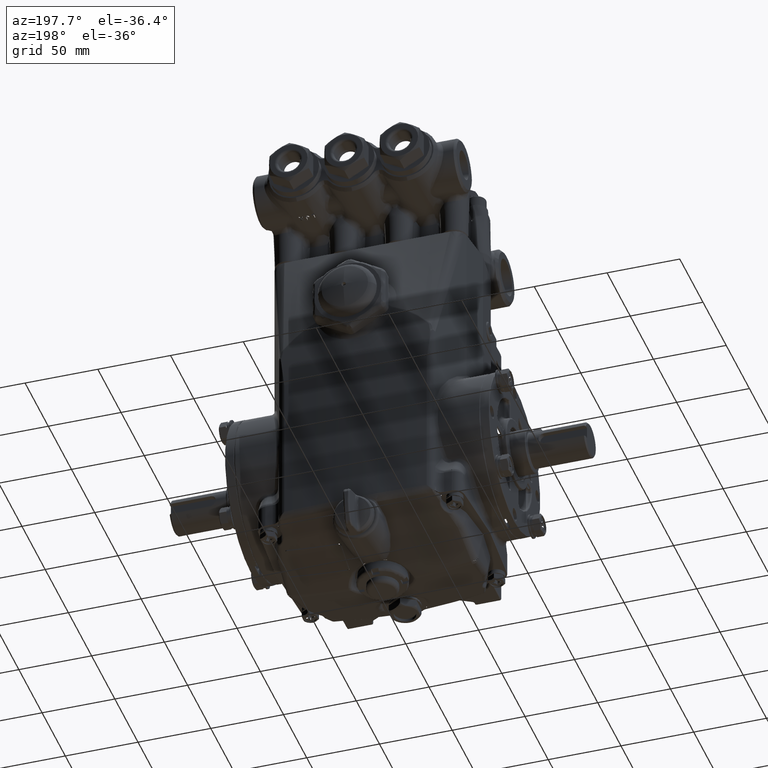
[diagram: clean part render]
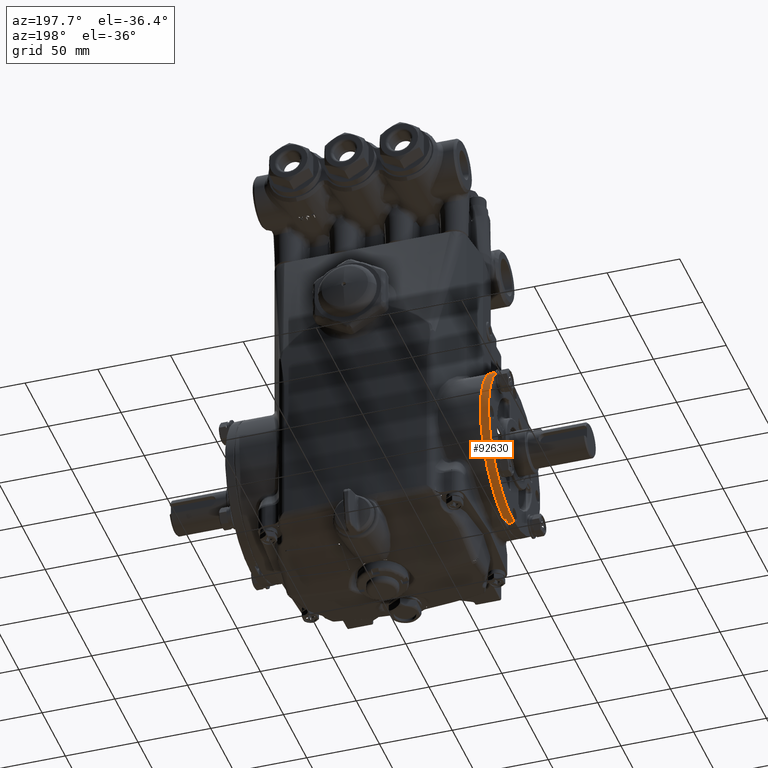
[diagram: same view with one face highlighted and labeled with its STEP entity id]
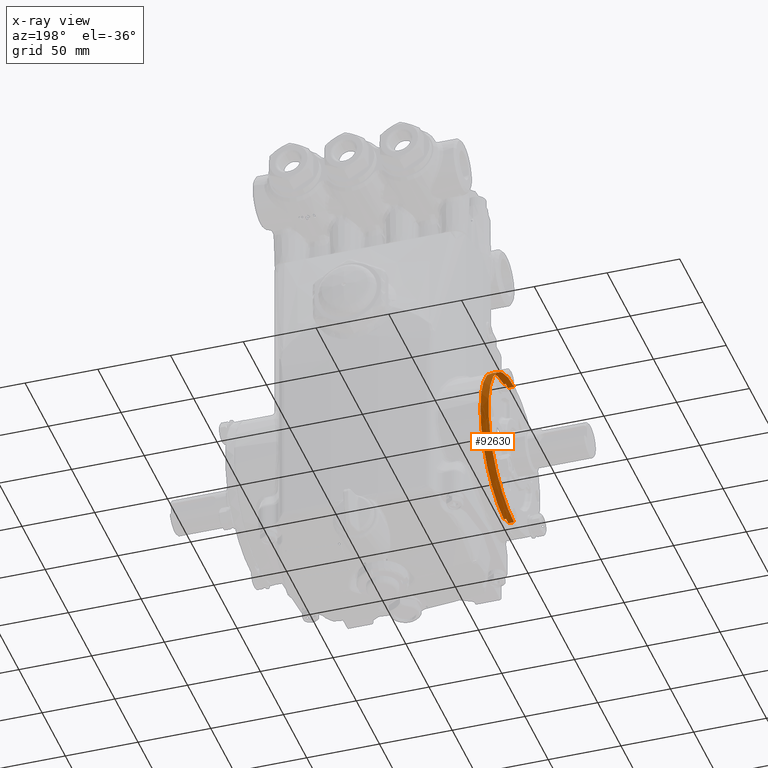
[diagram: x-ray of the same camera — body ghosted, the highlighted face saturated]
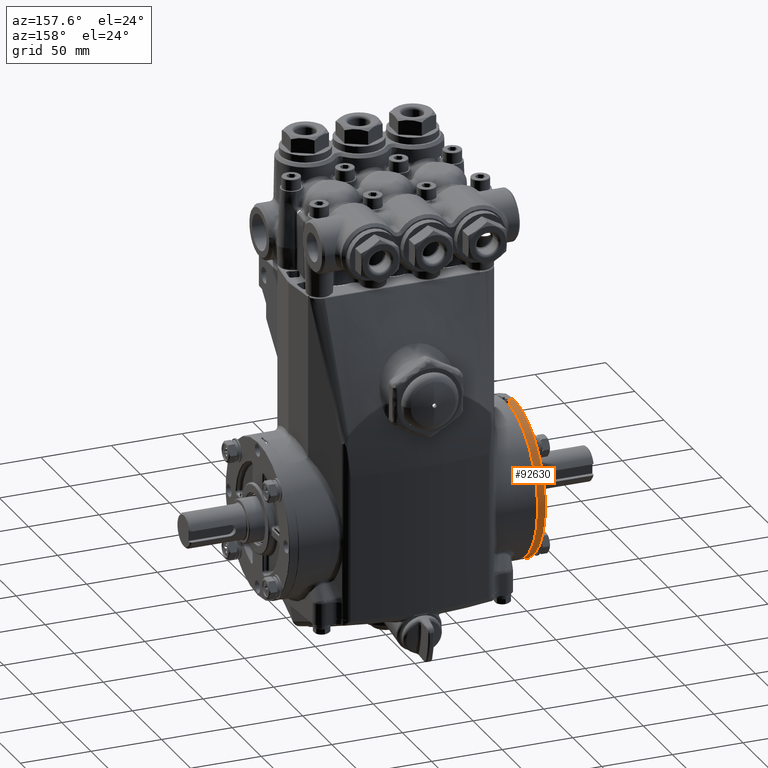
[diagram: same view with one face highlighted and labeled with its STEP entity id]
A machine part, auxiliary view. The second image highlights one B-rep face of the part: STEP entity #92630.
The next image is the same camera in x-ray: the body ghosted, the highlighted face saturated — about 0% of this face is hidden behind the body in this view.
A second angle (auxiliary view) of the same face is appended — the face is thin or edge-on in the first view.
In plain terms, the highlighted conical surface has half-angle 2 deg.
Its self-contained STEP definition (entity closure, byte-faithful):
#1118 = ORIENTED_EDGE ( 'NONE', *, *, #69803, .F. ) ;
#2914 = EDGE_CURVE ( 'NONE', #117293, #70213, #119117, .T. ) ;
#3540 = DIRECTION ( 'NONE',  ( 0.9993908270190960952, 5.478410533102381622E-17, -0.03489949670249312130 ) ) ;
#5073 = EDGE_CURVE ( 'NONE', #133791, #86228, #76562, .T. ) ;
#5626 = DIRECTION ( 'NONE',  ( 0.9993908270190959842, 6.333201671673617851E-17, 0.03489949670249323926 ) ) ;
#8277 = CARTESIAN_POINT ( 'NONE',  ( -3.399606299212598159, 0.1943756935005846731, 2.162824254800939983 ) ) ;
#10755 = CARTESIAN_POINT ( 'NONE',  ( -3.340551181102362044, 0.1964379436674202617, 2.164708658562756405 ) ) ;
#11184 = CARTESIAN_POINT ( 'NONE',  ( -3.399606299212598159, 0.1943756935005843123, -2.162824254800940427 ) ) ;
#15390 = CARTESIAN_POINT ( 'NONE',  ( -3.379921268556477010, 0.1950631099185648476, -2.163452662747427979 ) ) ;
#16806 = CARTESIAN_POINT ( 'NONE',  ( -3.576771653543306506, -6.167832353579729946E-16, -2.165354330708661568 ) ) ;
#16896 = ORIENTED_EDGE ( 'NONE', *, *, #120719, .T. ) ;
#21268 = CARTESIAN_POINT ( 'NONE',  ( -3.360236229175034062, 0.1957505266412404854, 2.164080797097099662 ) ) ;
#21424 = CARTESIAN_POINT ( 'NONE',  ( -3.399606299212598159, -7.519730691860493826E-17, 2.171541081209166446 ) ) ;
#22359 = CIRCLE ( 'NONE', #51452, 2.173603331376001702 ) ;
#23272 = DIRECTION ( 'NONE',  ( 1.000000000000000000, 6.123233995736764803E-17, 6.123233995736763571E-17 ) ) ;
#26431 = DIRECTION ( 'NONE',  ( 1.000000000000000000, 6.123233995736764803E-17, 6.123233995736763571E-17 ) ) ;
#26754 = VERTEX_POINT ( 'NONE', #54576 ) ;
#26904 = VERTEX_POINT ( 'NONE', #47270 ) ;
#27150 = CARTESIAN_POINT ( 'NONE',  ( -3.576771653543306506, -2.190140978396397831E-16, -2.190140978396397091E-16 ) ) ;
#28459 = ORIENTED_EDGE ( 'NONE', *, *, #85159, .T. ) ;
#28930 = DIRECTION ( 'NONE',  ( 1.000000000000000000, 6.123233995736764803E-17, 6.123233995736763571E-17 ) ) ;
#30544 = ORIENTED_EDGE ( 'NONE', *, *, #42846, .F. ) ;
#34577 = CARTESIAN_POINT ( 'NONE',  ( -3.557773612139811803, -6.097880150863474890E-16, -2.166017756933307670 ) ) ;
#40809 = VECTOR ( 'NONE', #3540, 39.37007874015747433 ) ;
#41485 = EDGE_LOOP ( 'NONE', ( #30544, #102470, #28459, #49868, #16896, #1118, #132724, #92628 ) ) ;
#42077 = B_SPLINE_CURVE_WITH_KNOTS ( 'NONE', 3,
 ( #42969, #54853, #21268, #10755 ),
 .UNSPECIFIED., .F., .F.,
 ( 4, 4 ),
 ( 2.002237295446668315E-07, 0.001501877530600107457 ),
 .UNSPECIFIED. ) ;
#42846 = EDGE_CURVE ( 'NONE', #133791, #26904, #69983, .T. ) ;
#42969 = CARTESIAN_POINT ( 'NONE',  ( -3.399606299212598159, 0.1943756935005846731, 2.162824254800939983 ) ) ;
#47270 = CARTESIAN_POINT ( 'NONE',  ( -3.399606299212598159, -6.070714737825626524E-16, -2.171541081209166890 ) ) ;
#48105 = CARTESIAN_POINT ( 'NONE',  ( -3.340551181102362044, -2.045497655662458701E-16, -2.045497655662458208E-16 ) ) ;
#48161 = DIRECTION ( 'NONE',  ( 0.000000000000000000, 6.123233995736764803E-17, 1.000000000000000000 ) ) ;
#49687 = CARTESIAN_POINT ( 'NONE',  ( -3.576771653543306506, -8.642438533352869613E-17, 2.165354330708661124 ) ) ;
#49868 = ORIENTED_EDGE ( 'NONE', *, *, #2914, .F. ) ;
#51452 = AXIS2_PLACEMENT_3D ( 'NONE', #48105, #80306, #92182 ) ;
#51968 = AXIS2_PLACEMENT_3D ( 'NONE', #84228, #28930, #72360 ) ;
#53365 = DIRECTION ( 'NONE',  ( 0.000000000000000000, 6.123233995736764803E-17, 1.000000000000000000 ) ) ;
#54576 = CARTESIAN_POINT ( 'NONE',  ( -3.340551181102362044, 0.1964379436674202617, 2.164708658562756405 ) ) ;
#54853 = CARTESIAN_POINT ( 'NONE',  ( -3.379921268556477010, 0.1950631099185651252, 2.163452662747427535 ) ) ;
#56161 = CARTESIAN_POINT ( 'NONE',  ( -3.399606299212598159, -2.081658486345943545E-16, -2.081658486345943052E-16 ) ) ;
#57272 = CARTESIAN_POINT ( 'NONE',  ( -3.557773612139811803, -7.833770755531265921E-17, 2.166017756933307226 ) ) ;
#58818 = AXIS2_PLACEMENT_3D ( 'NONE', #56161, #23272, #53365 ) ;
#61433 = B_SPLINE_CURVE_WITH_KNOTS ( 'NONE', 3,
 ( #132289, #121803, #15390, #80471 ),
 .UNSPECIFIED., .F., .F.,
 ( 4, 4 ),
 ( 0.0003005355255671438366, 0.001802212832437706091 ),
 .UNSPECIFIED. ) ;
#69178 = FACE_OUTER_BOUND ( 'NONE', #41485, .T. ) ;
#69803 = EDGE_CURVE ( 'NONE', #98042, #26754, #22359, .T. ) ;
#69983 = LINE ( 'NONE', #16806, #40809 ) ;
#70213 = VERTEX_POINT ( 'NONE', #21424 ) ;
#72360 = DIRECTION ( 'NONE',  ( 0.000000000000000000, -6.123233995736767268E-17, -1.000000000000000000 ) ) ;
#76562 = CIRCLE ( 'NONE', #51968, 2.166017756933307226 ) ;
#80306 = DIRECTION ( 'NONE',  ( 1.000000000000000000, 6.123233995736764803E-17, 6.123233995736763571E-17 ) ) ;
#80471 = CARTESIAN_POINT ( 'NONE',  ( -3.399606299212598159, 0.1943756935005843123, -2.162824254800940427 ) ) ;
#84228 = CARTESIAN_POINT ( 'NONE',  ( -3.557773612139811803, -2.178508033098968263E-16, -2.178508033098967770E-16 ) ) ;
#85159 = EDGE_CURVE ( 'NONE', #86228, #70213, #122491, .T. ) ;
#86228 = VERTEX_POINT ( 'NONE', #57272 ) ;
#87992 = AXIS2_PLACEMENT_3D ( 'NONE', #27150, #113302, #123798 ) ;
#90200 = AXIS2_PLACEMENT_3D ( 'NONE', #121689, #26431, #48161 ) ;
#90214 = EDGE_CURVE ( 'NONE', #26904, #123976, #123807, .T. ) ;
#92182 = DIRECTION ( 'NONE',  ( 0.000000000000000000, 6.123233995736764803E-17, 1.000000000000000000 ) ) ;
#92628 = ORIENTED_EDGE ( 'NONE', *, *, #90214, .F. ) ;
#92630 = ADVANCED_FACE ( 'NONE', ( #69178 ), #108079, .T. ) ;
#98042 = VERTEX_POINT ( 'NONE', #132240 ) ;
#100801 = VECTOR ( 'NONE', #5626, 39.37007874015748143 ) ;
#102470 = ORIENTED_EDGE ( 'NONE', *, *, #5073, .T. ) ;
#105388 = EDGE_CURVE ( 'NONE', #98042, #123976, #61433, .T. ) ;
#108079 = CONICAL_SURFACE ( 'NONE', #87992, 2.165354330708661568, 0.03490658503987879163 ) ;
#113302 = DIRECTION ( 'NONE',  ( 1.000000000000000000, 6.123233995736764803E-17, 6.123233995736763571E-17 ) ) ;
#117293 = VERTEX_POINT ( 'NONE', #8277 ) ;
#119117 = CIRCLE ( 'NONE', #58818, 2.171541081209166890 ) ;
#120719 = EDGE_CURVE ( 'NONE', #117293, #26754, #42077, .T. ) ;
#121689 = CARTESIAN_POINT ( 'NONE',  ( -3.399606299212598159, -2.081658486345943545E-16, -2.081658486345943052E-16 ) ) ;
#121803 = CARTESIAN_POINT ( 'NONE',  ( -3.360236229175034062, 0.1957505266412402078, -2.164080797097100106 ) ) ;
#122491 = LINE ( 'NONE', #49687, #100801 ) ;
#123798 = DIRECTION ( 'NONE',  ( 0.000000000000000000, 6.123233995736764803E-17, 1.000000000000000000 ) ) ;
#123807 = CIRCLE ( 'NONE', #90200, 2.171541081209166890 ) ;
#123976 = VERTEX_POINT ( 'NONE', #11184 ) ;
#132240 = CARTESIAN_POINT ( 'NONE',  ( -3.340551181102362044, 0.1964379436674199564, -2.164708658562755961 ) ) ;
#132289 = CARTESIAN_POINT ( 'NONE',  ( -3.340551181102362044, 0.1964379436674199564, -2.164708658562755961 ) ) ;
#132724 = ORIENTED_EDGE ( 'NONE', *, *, #105388, .T. ) ;
#133791 = VERTEX_POINT ( 'NONE', #34577 ) ;